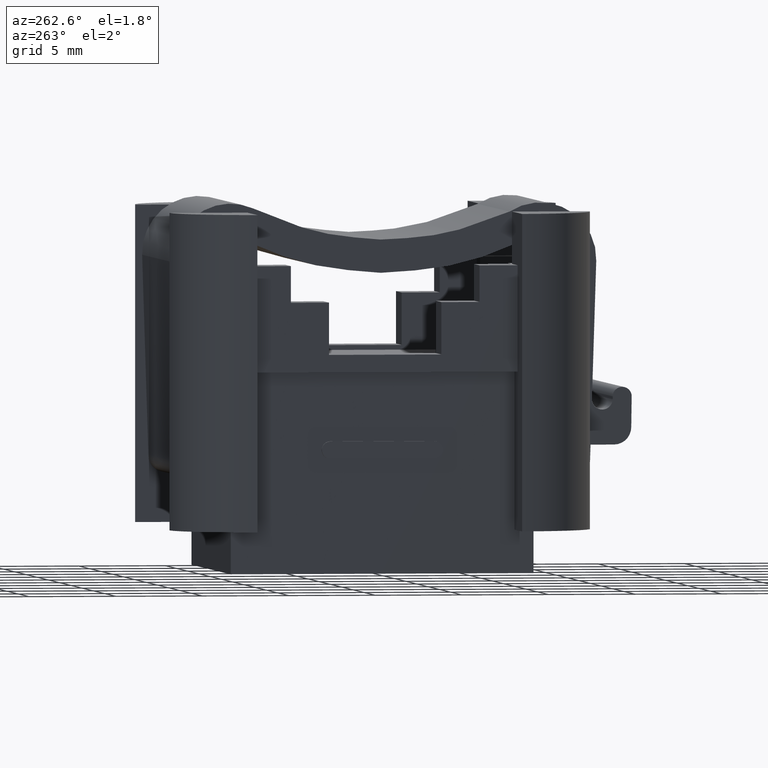
[diagram: clean part render]
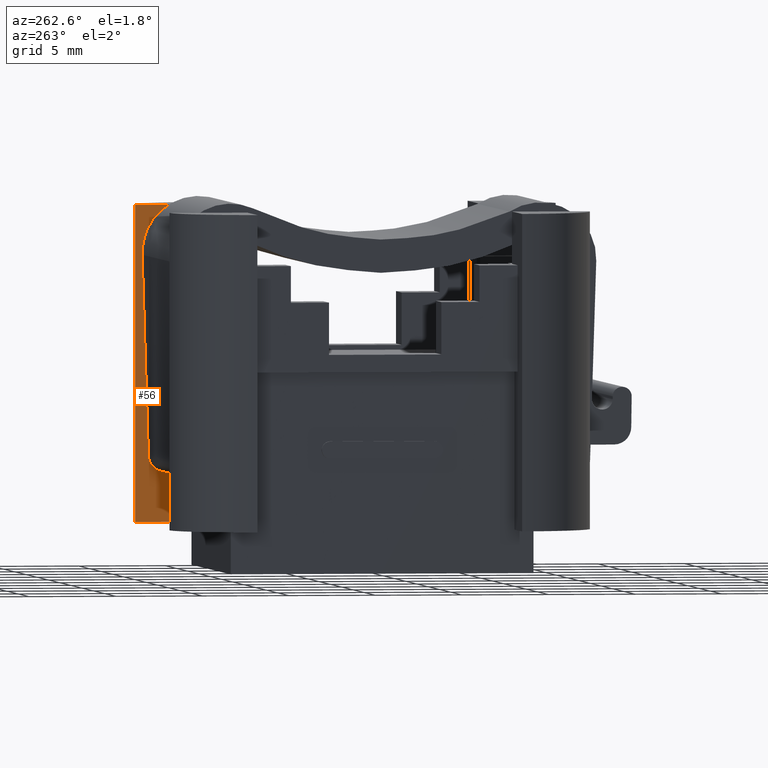
[diagram: same view with one face highlighted and labeled with its STEP entity id]
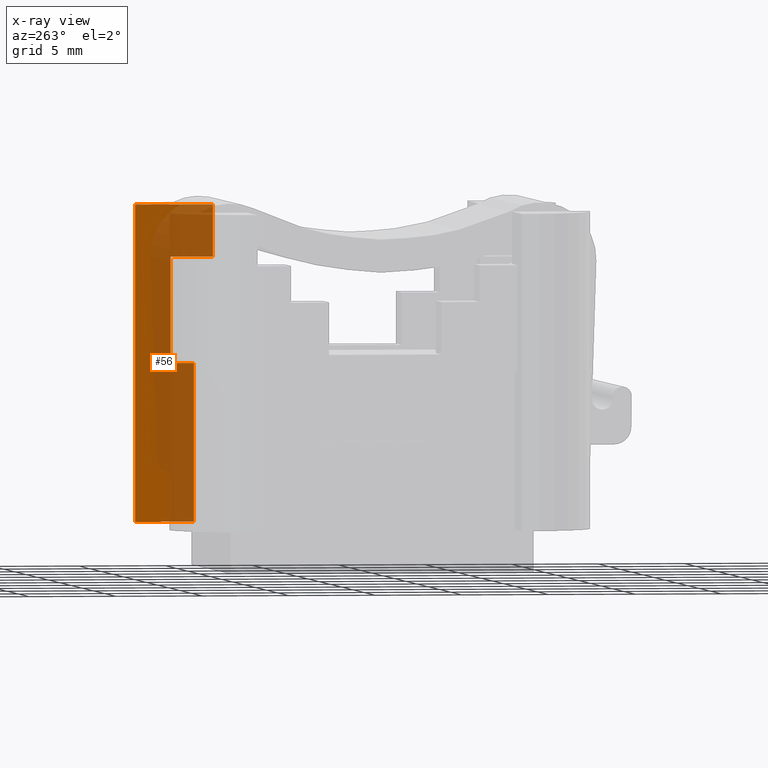
[diagram: x-ray of the same camera — body ghosted, the highlighted face saturated]
A machine part, auxiliary view. The second image highlights one B-rep face of the part: STEP entity #56.
The next image is the same camera in x-ray: the body ghosted, the highlighted face saturated — about 59% of this face is hidden behind the body in this view.
In plain terms, the highlighted planar face has unit normal (1, 0, 0).
Its self-contained STEP definition (entity closure, byte-faithful):
#56 = ADVANCED_FACE ( 'NONE', ( #3052 ), #3069, .F. ) ;
#84 = DIRECTION ( 'NONE',  ( 0.0000000000000000000, 0.0000000000000000000, -1.000000000000000000 ) ) ;
#95 = CARTESIAN_POINT ( 'NONE',  ( 15.40677301337948700, 22.24394666863502600, 20.50000000000000000 ) ) ;
#97 = LINE ( 'NONE', #95, #946 ) ;
#544 = AXIS2_PLACEMENT_3D ( 'NONE', #3044, #3041, #3070 ) ;
#660 = VECTOR ( 'NONE', #2239, 1000.000000000000000 ) ;
#671 = VECTOR ( 'NONE', #2320, 1000.000000000000000 ) ;
#687 = VECTOR ( 'NONE', #2347, 1000.000000000000000 ) ;
#718 = VECTOR ( 'NONE', #1740, 1000.000000000000000 ) ;
#725 = VECTOR ( 'NONE', #1133, 1000.000000000000000 ) ;
#747 = VECTOR ( 'NONE', #1151, 1000.000000000000000 ) ;
#763 = VECTOR ( 'NONE', #1666, 1000.000000000000000 ) ;
#946 = VECTOR ( 'NONE', #84, 1000.000000000000000 ) ;
#1122 = CARTESIAN_POINT ( 'NONE',  ( 15.40677301337948700, -14.72606040412509300, 20.50000000000000000 ) ) ;
#1133 = DIRECTION ( 'NONE',  ( 0.0000000000000000000, 1.000000000000000000, 0.0000000000000000000 ) ) ;
#1149 = LINE ( 'NONE', #1175, #747 ) ;
#1151 = DIRECTION ( 'NONE',  ( 0.0000000000000000000, 0.0000000000000000000, 1.000000000000000000 ) ) ;
#1175 = CARTESIAN_POINT ( 'NONE',  ( 15.40677301337948700, 24.29420820835009200, 0.0000000000000000000 ) ) ;
#1634 = LINE ( 'NONE', #1122, #725 ) ;
#1666 = DIRECTION ( 'NONE',  ( 0.0000000000000000000, -1.000000000000000000, 0.0000000000000000000 ) ) ;
#1683 = CARTESIAN_POINT ( 'NONE',  ( 15.40677301337948700, 48.14154428489644700, 17.50000000000037700 ) ) ;
#1698 = LINE ( 'NONE', #1683, #763 ) ;
#1725 = CARTESIAN_POINT ( 'NONE',  ( 15.40677301337948700, 20.89394666863502400, 11.40000000000000000 ) ) ;
#1740 = DIRECTION ( 'NONE',  ( 0.0000000000000000000, 1.000000000000000000, 0.0000000000000000000 ) ) ;
#1747 = LINE ( 'NONE', #1725, #718 ) ;
#1753 = CARTESIAN_POINT ( 'NONE',  ( 15.40677301337948700, 22.24394666863502600, 17.50000000000037700 ) ) ;
#1762 = CARTESIAN_POINT ( 'NONE',  ( 15.40677301337948700, 22.24394666863502600, 11.40000000000000000 ) ) ;
#1813 = CARTESIAN_POINT ( 'NONE',  ( 15.40677301337948700, 19.79524547676573900, 17.50000000000006400 ) ) ;
#1833 = CARTESIAN_POINT ( 'NONE',  ( 15.40677301337948700, 20.89394666863502400, 11.40000000000000000 ) ) ;
#1837 = CARTESIAN_POINT ( 'NONE',  ( 15.40677301337948700, 24.29420820835009200, 2.299999999999999800 ) ) ;
#1853 = CARTESIAN_POINT ( 'NONE',  ( 15.40677301337948700, 24.29420820835009200, 20.50000000000000000 ) ) ;
#1856 = CARTESIAN_POINT ( 'NONE',  ( 15.40677301337948700, 20.89394666863502400, 2.299999999999999800 ) ) ;
#1861 = CARTESIAN_POINT ( 'NONE',  ( 15.40677301337948700, 19.79524547676573900, 20.50000000000000000 ) ) ;
#2215 = LINE ( 'NONE', #2249, #660 ) ;
#2239 = DIRECTION ( 'NONE',  ( 0.0000000000000000000, 1.000000000000000000, 0.0000000000000000000 ) ) ;
#2249 = CARTESIAN_POINT ( 'NONE',  ( 15.40677301337948700, 48.14154428489644700, 2.299999999999999800 ) ) ;
#2257 = CARTESIAN_POINT ( 'NONE',  ( 15.40677301337948700, 19.79524547676573900, -17.45113787988657000 ) ) ;
#2286 = LINE ( 'NONE', #2257, #671 ) ;
#2313 = LINE ( 'NONE', #2321, #687 ) ;
#2320 = DIRECTION ( 'NONE',  ( 0.0000000000000000000, 0.0000000000000000000, -1.000000000000000000 ) ) ;
#2321 = CARTESIAN_POINT ( 'NONE',  ( 15.40677301337948700, 20.89394666863502400, 11.40000000000000000 ) ) ;
#2347 = DIRECTION ( 'NONE',  ( 0.0000000000000000000, 0.0000000000000000000, -1.000000000000000000 ) ) ;
#2610 = ORIENTED_EDGE ( 'NONE', *, *, #3922, .F. ) ;
#2613 = ORIENTED_EDGE ( 'NONE', *, *, #4030, .F. ) ;
#2620 = ORIENTED_EDGE ( 'NONE', *, *, #3962, .F. ) ;
#2627 = ORIENTED_EDGE ( 'NONE', *, *, #3997, .T. ) ;
#2629 = ORIENTED_EDGE ( 'NONE', *, *, #3951, .F. ) ;
#2631 = ORIENTED_EDGE ( 'NONE', *, *, #4011, .T. ) ;
#2653 = ORIENTED_EDGE ( 'NONE', *, *, #4191, .F. ) ;
#2662 = ORIENTED_EDGE ( 'NONE', *, *, #3982, .T. ) ;
#3041 = DIRECTION ( 'NONE',  ( 1.000000000000000000, 0.0000000000000000000, 0.0000000000000000000 ) ) ;
#3044 = CARTESIAN_POINT ( 'NONE',  ( 15.40677301337948700, 48.14154428489644700, -17.45113787988657000 ) ) ;
#3052 = FACE_OUTER_BOUND ( 'NONE', #3707, .T. ) ;
#3069 = PLANE ( 'NONE',  #544 ) ;
#3070 = DIRECTION ( 'NONE',  ( 0.0000000000000000000, 0.0000000000000000000, -1.000000000000000000 ) ) ;
#3510 = VERTEX_POINT ( 'NONE', #1762 ) ;
#3534 = VERTEX_POINT ( 'NONE', #1753 ) ;
#3562 = VERTEX_POINT ( 'NONE', #1856 ) ;
#3571 = VERTEX_POINT ( 'NONE', #1861 ) ;
#3594 = VERTEX_POINT ( 'NONE', #1833 ) ;
#3599 = VERTEX_POINT ( 'NONE', #1813 ) ;
#3600 = VERTEX_POINT ( 'NONE', #1837 ) ;
#3612 = VERTEX_POINT ( 'NONE', #1853 ) ;
#3707 = EDGE_LOOP ( 'NONE', ( #2610, #2620, #2627, #2653, #2662, #2629, #2631, #2613 ) ) ;
#3922 = EDGE_CURVE ( 'NONE', #3562, #3600, #2215, .T. ) ;
#3951 = EDGE_CURVE ( 'NONE', #3571, #3599, #2286, .T. ) ;
#3962 = EDGE_CURVE ( 'NONE', #3594, #3562, #2313, .T. ) ;
#3982 = EDGE_CURVE ( 'NONE', #3534, #3599, #1698, .T. ) ;
#3997 = EDGE_CURVE ( 'NONE', #3594, #3510, #1747, .T. ) ;
#4011 = EDGE_CURVE ( 'NONE', #3571, #3612, #1634, .T. ) ;
#4030 = EDGE_CURVE ( 'NONE', #3600, #3612, #1149, .T. ) ;
#4191 = EDGE_CURVE ( 'NONE', #3534, #3510, #97, .T. ) ;